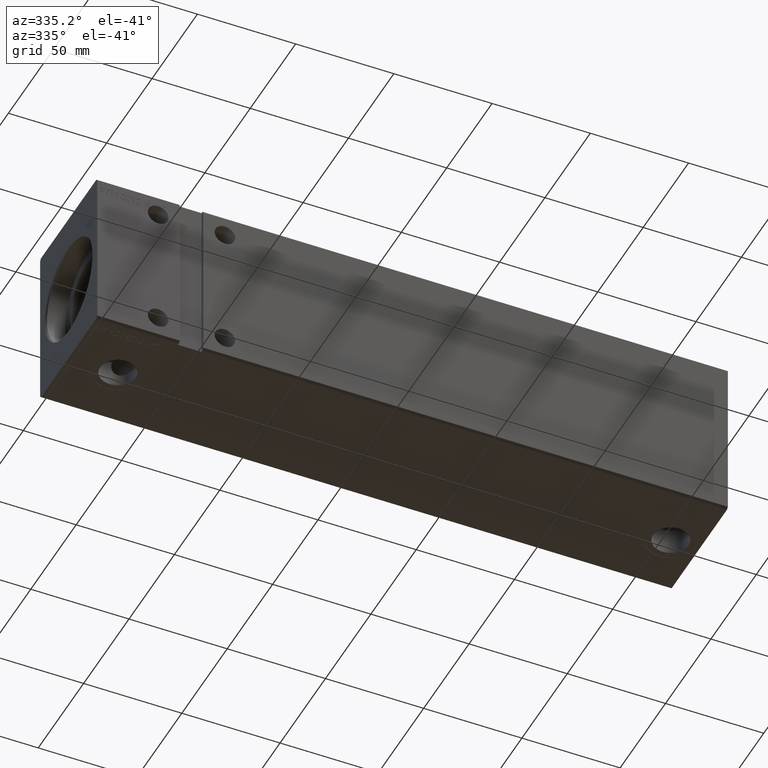
[diagram: clean part render]
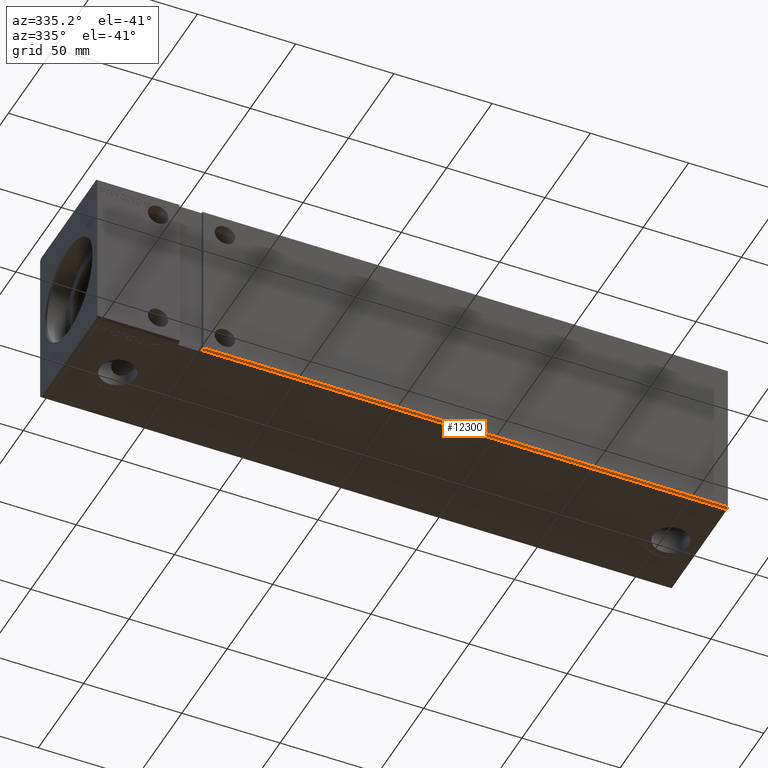
[diagram: same view with one face highlighted and labeled with its STEP entity id]
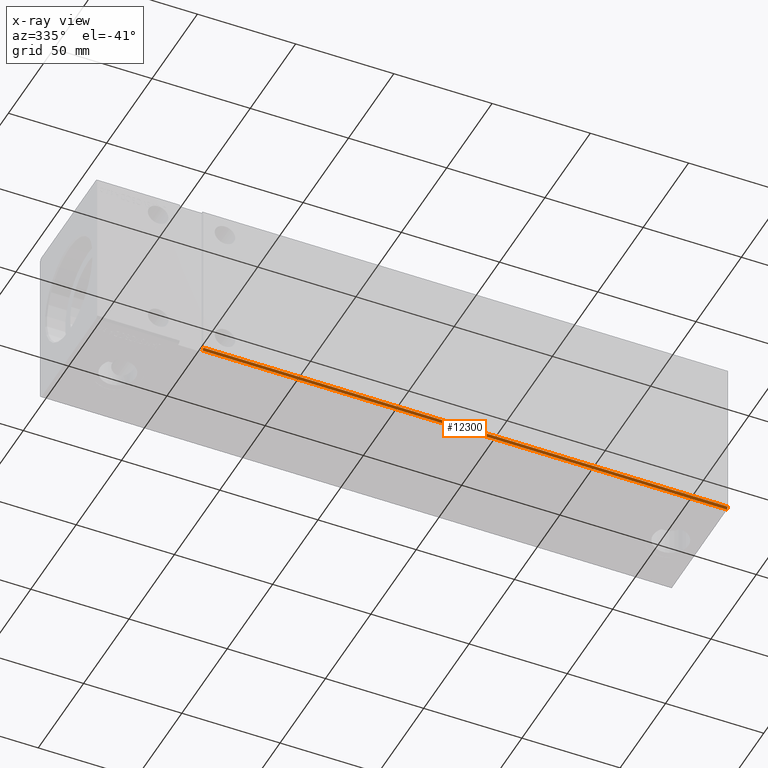
[diagram: x-ray of the same camera — body ghosted, the highlighted face saturated]
A machine part, auxiliary view. The second image highlights one B-rep face of the part: STEP entity #12300.
The next image is the same camera in x-ray: the body ghosted, the highlighted face saturated — about 0% of this face is hidden behind the body in this view.
In plain terms, the highlighted planar face has unit normal (-0, 0.7071, 0.7071).
Its self-contained STEP definition (entity closure, byte-faithful):
#253 = DIRECTION ( 'NONE',  ( 0.000000000000000000, -0.7071067811865451302, 0.7071067811865500152 ) ) ;
#372 = DIRECTION ( 'NONE',  ( 0.000000000000000000, 0.7071067811865451302, -0.7071067811865500152 ) ) ;
#1481 = EDGE_LOOP ( 'NONE', ( #33936, #34262, #32717, #11311 ) ) ;
#3006 = CARTESIAN_POINT ( 'NONE',  ( 321.0000000000000000, -31.50000000000000000, -41.50000000000000711 ) ) ;
#3913 = CARTESIAN_POINT ( 'NONE',  ( 53.99999999999999289, -31.49999999999995737, -41.50000000000004974 ) ) ;
#5727 = VERTEX_POINT ( 'NONE', #3006 ) ;
#6654 = CARTESIAN_POINT ( 'NONE',  ( 321.0000000000000000, -31.50000000000000000, -41.50000000000000711 ) ) ;
#8722 = VERTEX_POINT ( 'NONE', #27897 ) ;
#9299 = VERTEX_POINT ( 'NONE', #33291 ) ;
#10715 = LINE ( 'NONE', #39672, #41242 ) ;
#11311 = ORIENTED_EDGE ( 'NONE', *, *, #37494, .F. ) ;
#12300 = ADVANCED_FACE ( 'NONE', ( #16209 ), #22823, .F. ) ;
#13165 = CARTESIAN_POINT ( 'NONE',  ( 321.0000000000000000, -31.50000000000000000, -41.50000000000000711 ) ) ;
#14119 = VECTOR ( 'NONE', #372, 1000.000000000000114 ) ;
#15840 = AXIS2_PLACEMENT_3D ( 'NONE', #6654, #32607, #253 ) ;
#16209 = FACE_OUTER_BOUND ( 'NONE', #1481, .T. ) ;
#20281 = LINE ( 'NONE', #3913, #30914 ) ;
#22823 = PLANE ( 'NONE',  #15840 ) ;
#23165 = LINE ( 'NONE', #13165, #33719 ) ;
#23191 = EDGE_CURVE ( 'NONE', #9299, #38725, #20281, .T. ) ;
#23704 = DIRECTION ( 'NONE',  ( -1.000000000000000000, -0.000000000000000000, -0.000000000000000000 ) ) ;
#24011 = EDGE_CURVE ( 'NONE', #8722, #38725, #10715, .T. ) ;
#27897 = CARTESIAN_POINT ( 'NONE',  ( 321.0000000000000000, -30.50000000000000711, -42.50000000000000711 ) ) ;
#29064 = CARTESIAN_POINT ( 'NONE',  ( 54.00000000000002842, -30.50000000000000711, -42.50000000000000711 ) ) ;
#29759 = DIRECTION ( 'NONE',  ( -1.000000000000000000, -0.000000000000000000, -0.000000000000000000 ) ) ;
#30914 = VECTOR ( 'NONE', #33270, 1000.000000000000114 ) ;
#32607 = DIRECTION ( 'NONE',  ( -0.000000000000000000, 0.7071067811865500152, 0.7071067811865451302 ) ) ;
#32717 = ORIENTED_EDGE ( 'NONE', *, *, #24011, .F. ) ;
#32931 = LINE ( 'NONE', #36333, #14119 ) ;
#33270 = DIRECTION ( 'NONE',  ( 2.308959498064382887E-16, 0.7071067811865451302, -0.7071067811865500152 ) ) ;
#33291 = CARTESIAN_POINT ( 'NONE',  ( 54.00000000000002842, -31.50000000000000000, -41.50000000000000711 ) ) ;
#33719 = VECTOR ( 'NONE', #29759, 1000.000000000000000 ) ;
#33936 = ORIENTED_EDGE ( 'NONE', *, *, #34075, .T. ) ;
#34075 = EDGE_CURVE ( 'NONE', #5727, #9299, #23165, .T. ) ;
#34262 = ORIENTED_EDGE ( 'NONE', *, *, #23191, .T. ) ;
#36333 = CARTESIAN_POINT ( 'NONE',  ( 321.0000000000000000, -31.50000000000000000, -41.50000000000000711 ) ) ;
#37494 = EDGE_CURVE ( 'NONE', #5727, #8722, #32931, .T. ) ;
#38725 = VERTEX_POINT ( 'NONE', #29064 ) ;
#39672 = CARTESIAN_POINT ( 'NONE',  ( 321.0000000000000000, -30.50000000000000711, -42.50000000000000711 ) ) ;
#41242 = VECTOR ( 'NONE', #23704, 1000.000000000000000 ) ;